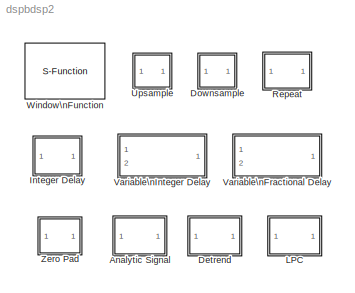
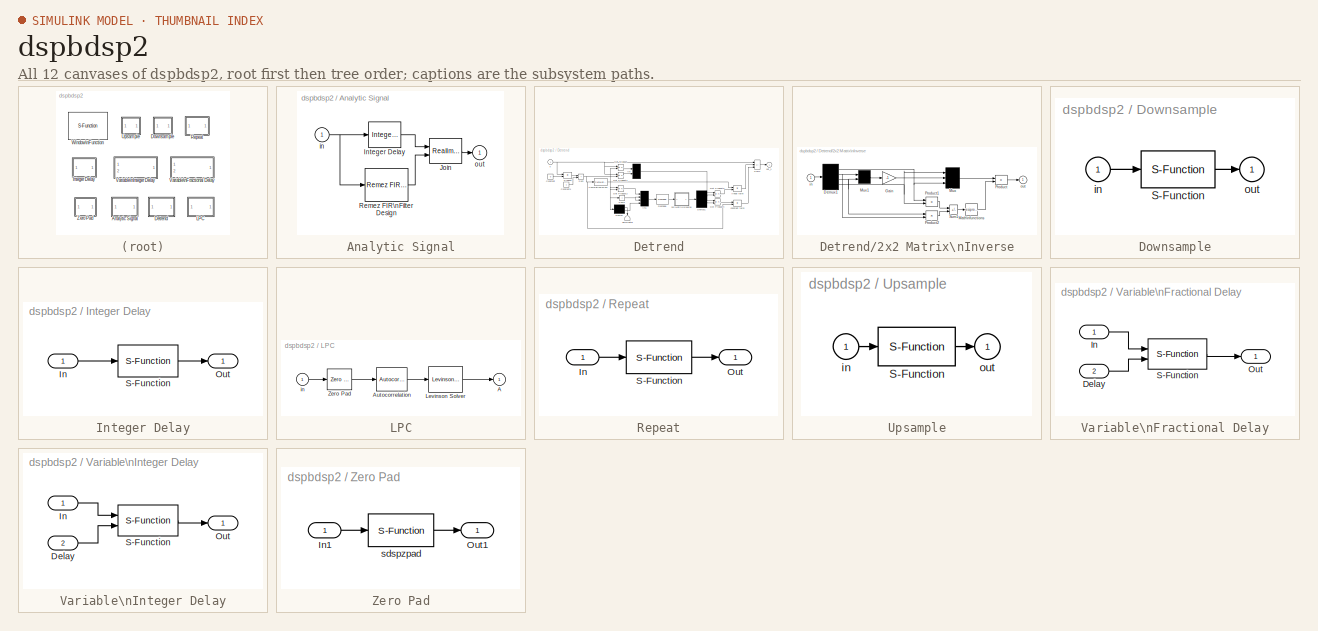
[diagram: thumbnail index - all 12 canvases of the model, root first then tree order]
MODEL dspbdsp2
KIND library
BLOCK [SubSystem] Analytic Signal
  MaskCallbackString = |dspblkanalytic|
  MaskDescription = Complex analytic signal of input.
  MaskDisplay = plot(x,y)
  MaskEnableString = on,on,off
  MaskHelp = web(dspbhelp);
  MaskIconFrame = on
  MaskIconOpaque = on
  MaskIconRotate = none
  MaskIconUnits = autoscale
  MaskInitialization = [x,y] = dspblkanalytic('icon');
  MaskPromptString = Filter order (must be even):|Frame-Based Inputs:|Number of Channels
  MaskSelfModifiable = on
  MaskStyleString = edit,checkbox,edit
  MaskTunableValueString = off,off,off
  MaskType = Analytic Signal
  MaskValueString = 100|off|1
  MaskVariables = N=@1;frame=&2;numChans=@3;
  MaskVisibilityString = on,on,on
  Ports = [1, 1, 0, 0, 0]
  ShowPortLabels = on
BLOCK [Reference] Analytic Signal/Integer Delay  REF=dspbdsp2/Integer Delay
  Ports = [1, 1, 0, 0, 0]
  SourceBlock = dspbdsp2/Integer Delay
  SourceType = Integer Delay
  delay = N/2
  df = on
  frame = off
  ic = 0
  numChans = 1
BLOCK [RealImagToComplex] Analytic Signal/Join
  ConstantPart = 0
  Input = RealAndImag
  Ports = [2, 1, 0, 0, 0]
BLOCK [Reference] Analytic Signal/Remez FIR\nFilter Design  REF=dspddes2/Remez FIR\nFilter Design
  A = [1 1]
  F = [0.05 .95]
  N = N
  Ports = [1, 1, 0, 0, 0]
  SourceBlock = dspddes2/Remez FIR\nFilter Design
  SourceType = Remez FIR Filter Design
  W = 1
  filttype = Hilbert Transform
  frame = off
  numCHANS = 1
BLOCK [Inport] Analytic Signal/in
  DataType = auto
  Interpolate = on
  Port = 1
  PortWidth = -1
  SampleTime = -1
  SignalType = auto
BLOCK [Outport] Analytic Signal/out
  InitialOutput = 0
  OutputWhenDisabled = held
  Port = 1
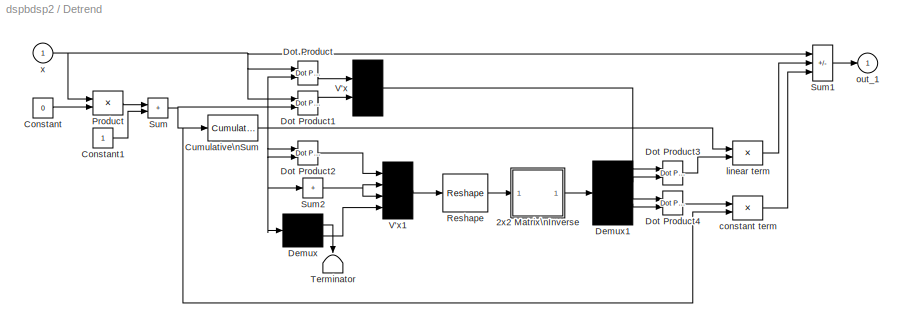
BLOCK [SubSystem] Detrend
  MaskDescription = Remove linear trend from vector input.
  MaskDisplay = plot(0,0,100,100,[12 20 24 32 38 44 49 54 67 69 71 78 81 89],[56 76 60 79 75 83 80 87 65 76 84 86 91 89],[],[],[],[],[],[],[12 20 24 32 38 44 49 54 67 69 71 78 81 89],[12 31 13 31 27 34 30 36 13 23 30 31 34 32],[4 96],[61 90],[47 47 42 47 52],[64 44 50 44 50],[4 96],[23 23])
  MaskHelp = web(dspbhelp);
  MaskIconFrame = on
  MaskIconOpaque = on
  MaskIconRotate = none
  MaskIconUnits = autoscale
  MaskType = Detrend
  Ports = [1, 1, 0, 0, 0]
  ShowPortLabels = on
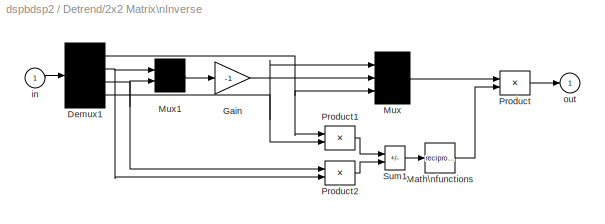
BLOCK [SubSystem] Detrend/2x2 Matrix\nInverse
  MaskDisplay = disp('Invert\\n2x2')
  MaskIconFrame = on
  MaskIconOpaque = on
  MaskIconRotate = none
  MaskIconUnits = autoscale
  MaskType = Invert 2x2 Matrix
  Ports = [1, 1, 0, 0, 0]
  ShowPortLabels = on
BLOCK [Demux] Detrend/2x2 Matrix\nInverse/Demux1
  Outputs = 4
  Ports = [1, 4, 0, 0, 0]
BLOCK [Gain] Detrend/2x2 Matrix\nInverse/Gain
  Gain = -1
  SaturateOnIntegerOverflow = on
BLOCK [Math] Detrend/2x2 Matrix\nInverse/Math\nfunctions
  Operator = reciprocal
  OutputSignalType = auto
  Ports = [1, 1, 0, 0, 0]
BLOCK [Mux] Detrend/2x2 Matrix\nInverse/Mux
  DisplayOption = none
  Inputs = 3
  Ports = [3, 1, 0, 0, 0]
BLOCK [Mux] Detrend/2x2 Matrix\nInverse/Mux1
  DisplayOption = none
  Inputs = 2
  Ports = [2, 1, 0, 0, 0]
BLOCK [Product] Detrend/2x2 Matrix\nInverse/Product
  Inputs = 2
  Ports = [2, 1, 0, 0, 0]
  SaturateOnIntegerOverflow = on
BLOCK [Product] Detrend/2x2 Matrix\nInverse/Product1
  Inputs = 2
  Ports = [2, 1, 0, 0, 0]
  SaturateOnIntegerOverflow = on
BLOCK [Product] Detrend/2x2 Matrix\nInverse/Product2
  Inputs = 2
  Ports = [2, 1, 0, 0, 0]
  SaturateOnIntegerOverflow = on
BLOCK [Sum] Detrend/2x2 Matrix\nInverse/Sum1
  IconShape = rectangular
  Inputs = +-
  Ports = [2, 1, 0, 0, 0]
  SaturateOnIntegerOverflow = on
BLOCK [Inport] Detrend/2x2 Matrix\nInverse/in
  DataType = auto
  Interpolate = on
  Port = 1
  PortWidth = -1
  SampleTime = -1
  SignalType = auto
BLOCK [Outport] Detrend/2x2 Matrix\nInverse/out
  InitialOutput = 0
  OutputWhenDisabled = held
  Port = 1
BLOCK [Constant] Detrend/Constant
  Value = 0
BLOCK [Constant] Detrend/Constant1
  Value = 1
BLOCK [Reference] Detrend/Cumulative\nSum  REF=dspvect2/Cumulative\nSum
  Ports = [1, 1, 0, 0, 0]
  SourceBlock = dspvect2/Cumulative\nSum
  SourceType = Cumulative Sum
BLOCK [Demux] Detrend/Demux
  Outputs = [-1 1]
  Ports = [1, 2, 0, 0, 0]
BLOCK [Demux] Detrend/Demux1
  Outputs = [2 2]
  Ports = [1, 2, 0, 0, 0]
BLOCK [Reference] Detrend/Dot Product  REF=simulink3/Math/Dot Product
  Ports = [2, 1, 0, 0, 0]
  SourceBlock = simulink3/Math/Dot Product
  SourceType = Dot Product
BLOCK [Reference] Detrend/Dot Product1  REF=simulink3/Math/Dot Product
  Ports = [2, 1, 0, 0, 0]
  SourceBlock = simulink3/Math/Dot Product
  SourceType = Dot Product
BLOCK [Reference] Detrend/Dot Product2  REF=simulink3/Math/Dot Product
  Ports = [2, 1, 0, 0, 0]
  SourceBlock = simulink3/Math/Dot Product
  SourceType = Dot Product
BLOCK [Reference] Detrend/Dot Product3  REF=simulink3/Math/Dot Product
  Ports = [2, 1, 0, 0, 0]
  SourceBlock = simulink3/Math/Dot Product
  SourceType = Dot Product
BLOCK [Reference] Detrend/Dot Product4  REF=simulink3/Math/Dot Product
  Ports = [2, 1, 0, 0, 0]
  SourceBlock = simulink3/Math/Dot Product
  SourceType = Dot Product
BLOCK [Product] Detrend/Product
  Inputs = 2
  Ports = [2, 1, 0, 0, 0]
  SaturateOnIntegerOverflow = on
BLOCK [Reference] Detrend/Reshape  REF=dspmtrx2/Reshape
  Asiz = [2 2]
  Ports = [1, 1, 0, 0, 0]
  SourceBlock = dspmtrx2/Reshape
  SourceType = Reshape
BLOCK [Sum] Detrend/Sum
  IconShape = rectangular
  Inputs = ++
  Ports = [2, 1, 0, 0, 0]
  SaturateOnIntegerOverflow = on
BLOCK [Sum] Detrend/Sum1
  IconShape = rectangular
  Inputs = +--
  Ports = [3, 1, 0, 0, 0]
  SaturateOnIntegerOverflow = on
BLOCK [Sum] Detrend/Sum2
  IconShape = rectangular
  Inputs = +
  Ports = [1, 1, 0, 0, 0]
  SaturateOnIntegerOverflow = on
BLOCK [Terminator] Detrend/Terminator
BLOCK [Mux] Detrend/V'x
  DisplayOption = none
  Inputs = 2
  Ports = [2, 1, 0, 0, 0]
BLOCK [Mux] Detrend/V'x1
  DisplayOption = none
  Inputs = 4
  Ports = [4, 1, 0, 0, 0]
BLOCK [Product] Detrend/constant term
  Inputs = 2
  Ports = [2, 1, 0, 0, 0]
  SaturateOnIntegerOverflow = on
BLOCK [Product] Detrend/linear term
  Inputs = 2
  Ports = [2, 1, 0, 0, 0]
  SaturateOnIntegerOverflow = on
BLOCK [Outport] Detrend/out_1
  InitialOutput = 0
  OutputWhenDisabled = held
  Port = 1
BLOCK [Inport] Detrend/x
  DataType = auto
  Interpolate = on
  Port = 1
  PortWidth = -1
  SampleTime = -1
  SignalType = auto
BLOCK [SubSystem] Downsample
  MaskCallbackString = ||||dspblkdsamp||
  MaskDescription = Downsample by an integer  factor.  Optional sample offset must be an integer in range (0, N-1).
  MaskDisplay = plot(x,y);\ntext(.6,.4,s);\n
  MaskEnableString = on,on,on,on,on,off,off
  MaskHelp = web(dspbhelp);
  MaskIconFrame = on
  MaskIconOpaque = on
  MaskIconRotate = none
  MaskIconUnits = normalized
  MaskInitialization = [s,x,y] = dspblkdsamp('icon',N, &1);\n
  MaskPromptString = Downsample factor, N:|Sample offset (0 to N-1):|Initial condition:|Enforce single-rate|Frame-based inputs|Number of channels:|Framing:
  MaskSelfModifiable = on
  MaskStyleString = edit,edit,edit,checkbox,checkbox,edit,popup(Maintain input frame size|Maintain input frame rate)
  MaskTunableValueString = off,off,off,on,off,off,off
  MaskType = Downsample
  MaskValueString = 2|0|0|off|off|1|Maintain input frame size
  MaskVariables = N=@1;phase=@2;ic=@3;sample_mode=@4;frame=@5;nchans=@6;mode=@7;
  MaskVisibilityString = on,on,on,on,on,on,on
  Ports = [1, 1, 0, 0, 0]
  ShowPortLabels = off
BLOCK [S-Function] Downsample/S-Function
  FunctionName = sdspdsamp
  Parameters = N,phase,ic,sample_mode,frame,nchans,mode
  PortCounts = []
  Ports = [1, 1, 0, 0, 0]
  SFunctionModules = ''
BLOCK [Inport] Downsample/in
  DataType = auto
  Interpolate = on
  Port = 1
  PortWidth = -1
  SampleTime = -1
  SignalType = auto
BLOCK [Outport] Downsample/out
  InitialOutput = 0
  OutputWhenDisabled = held
  Port = 1
BLOCK [SubSystem] Integer Delay
  MaskCallbackString = ||dspblkdly||
  MaskDescription = Delay discrete-time input by a fixed integer number of sample periods.\n\nIn frame-based mode, feedback loops can be made computable by deselecting \"Direct Feedthrough\".  This is valid only if the minimum delay value is at least as large as the frame size.
  MaskDisplay = text(0.42-dx, 0.4, 'z'); text(0.5-dx, 0.6, str);
  MaskEnableString = on,on,on,off,off
  MaskHelp = web(dspbhelp);
  MaskIconFrame = on
  MaskIconOpaque = on
  MaskIconRotate = none
  MaskIconUnits = normalized
  MaskInitialization = str = ['-' &1];\ndx = 0.01*length(str);\nif strcmp(frame,'off'), numChans=-1; end\ndelay=double(delay);\n
  MaskPromptString = Delay in samples:|Initial Conditions:|Frame-Based Inputs|Direct Feedthrough (deselect only if delay >= frame size)|Number of Channels:
  MaskStyleString = edit,edit,checkbox,checkbox,edit
  MaskTunableValueString = off,off,off,off,off
  MaskType = Integer Delay
  MaskValueString = 1|0|off|on|1
  MaskVariables = delay=@1;ic=@2;frame=&3;df=@4;numChans=@5;
  MaskVisibilityString = on,on,on,on,on
  Ports = [1, 1, 0, 0, 0]
  ShowPortLabels = on
BLOCK [Inport] Integer Delay/In
  DataType = auto
  Interpolate = on
  Port = 1
  PortWidth = -1
  SampleTime = -1
  SignalType = auto
BLOCK [Outport] Integer Delay/Out
  InitialOutput = 0
  OutputWhenDisabled = held
  Port = 1
BLOCK [S-Function] Integer Delay/S-Function
  FunctionName = sdspdly
  Parameters = delay,ic,numChans,df
  PortCounts = []
  Ports = [1, 1, 0, 0, 0]
  SFunctionModules = ''
BLOCK [SubSystem] LPC
  MaskDescription = Output the coefficients of an Nth order forward linear predictor such that the sum of the squares of the errors is minimized.
  MaskDisplay = disp('LPC')
  MaskEnableString = on
  MaskHelp = web(dspbhelp);
  MaskIconFrame = on
  MaskIconOpaque = on
  MaskIconRotate = none
  MaskIconUnits = autoscale
  MaskInitialization = if ord==-1,\n   pad = -1; acf=-1;\nelse\n   pad = ord+1; acf=ord;\nend\n
  MaskPromptString = Prediction order (-1 for length(u)-1):
  MaskStyleString = edit
  MaskTunableValueString = off
  MaskType = LPC
  MaskValueString = -1
  MaskVariables = ord=@1;
  MaskVisibilityString = on
  Ports = [1, 1, 0, 0, 0]
  ShowPortLabels = on
BLOCK [Outport] LPC/A
  InitialOutput = 0
  OutputWhenDisabled = held
  Port = 1
BLOCK [Reference] LPC/Autocorrelation  REF=dspvect2/Autocorrelation
  Ports = [1, 1, 0, 0, 0]
  SourceBlock = dspvect2/Autocorrelation
  SourceType = Autocorrelation
  bias = Biased
  maxlag = acf
BLOCK [Reference] LPC/Levinson Solver  REF=dsplinalg/Levinson Solver
  Ports = [1, 1, 0, 0, 0]
  SourceBlock = dsplinalg/Levinson Solver
  SourceType = Levinson Solver
  fcn = A
  otype = on
BLOCK [Reference] LPC/Zero Pad  REF=dspbdsp2/Zero Pad
  Ports = [1, 1, 0, 0, 0]
  SourceBlock = dspbdsp2/Zero Pad
  SourceType = Zero Pad
  nchans = 1
  pad = pad
  trunc = off
BLOCK [Inport] LPC/in
  DataType = auto
  Interpolate = on
  Port = 1
  PortWidth = -1
  SampleTime = -1
  SignalType = auto
BLOCK [SubSystem] Repeat
  MaskCallbackString = ||dspblkrepeat||
  MaskDescription = Repeat input samples N times.
  MaskDisplay = disp(s);
  MaskEnableString = on,on,on,off,off
  MaskHelp = web(dspbhelp);
  MaskIconFrame = on
  MaskIconOpaque = on
  MaskIconRotate = none
  MaskIconUnits = autoscale
  MaskInitialization = s = dspblkrepeat('icon',N, &1);\n\n
  MaskPromptString = Repetition count:|Initial conditions:|Frame-based inputs|Number of channels:|Framing:
  MaskSelfModifiable = on
  MaskStyleString = edit,edit,checkbox,edit,popup(Maintain input frame size|Maintain input frame rate)
  MaskTunableValueString = off,off,off,off,off
  MaskType = Repeat
  MaskValueString = 5|0|off|1|Maintain input frame size
  MaskVariables = N=@1;ic=@2;frame=@3;nchans=@4;mode=@5;
  MaskVisibilityString = on,on,on,on,on
  Ports = [1, 1, 0, 0, 0]
  ShowPortLabels = on
BLOCK [Inport] Repeat/In
  DataType = auto
  Interpolate = on
  Port = 1
  PortWidth = -1
  SampleTime = -1
  SignalType = auto
BLOCK [Outport] Repeat/Out
  InitialOutput = 0
  OutputWhenDisabled = held
  Port = 1
BLOCK [S-Function] Repeat/S-Function
  FunctionName = sdsprepeat
  Parameters = N,ic,frame,nchans,mode
  PortCounts = []
  Ports = [1, 1, 0, 0, 0]
  SFunctionModules = ''
BLOCK [SubSystem] Upsample
  MaskCallbackString = |||dspblkupsamp||
  MaskDescription = Upsample by inserting N-1 zeros between input samples.  Optional sample offset must be an integer in range (0, N-1).
  MaskDisplay = plot(x,y)\ntext(.6,.4,s);\n
  MaskEnableString = on,on,on,on,off,off
  MaskHelp = web(dspbhelp);
  MaskIconFrame = on
  MaskIconOpaque = on
  MaskIconRotate = none
  MaskIconUnits = autoscale
  MaskInitialization = [s,x,y] = dspblkupsamp('icon',N, &1);\n
  MaskPromptString = Upsample factor, N:|Sample offset (0 to N-1):|Initial condition:|Frame-based inputs|Number of channels:|Framing:
  MaskSelfModifiable = on
  MaskStyleString = edit,edit,edit,checkbox,edit,popup(Maintain input frame size|Maintain input frame rate)
  MaskTunableValueString = off,off,off,off,off,off
  MaskType = Upsample
  MaskValueString = 3|0|0|off|1|Maintain input frame size
  MaskVariables = N=@1;phase=@2;ic=@3;frame=@4;nchans=@5;mode=@6;
  MaskVisibilityString = on,on,on,on,on,on
  Ports = [1, 1, 0, 0, 0]
  ShowPortLabels = off
BLOCK [S-Function] Upsample/S-Function
  FunctionName = sdspupsamp
  Parameters = N,phase,ic,frame,nchans,mode
  PortCounts = []
  Ports = [1, 1, 0, 0, 0]
  SFunctionModules = ''
BLOCK [Inport] Upsample/in
  DataType = auto
  Interpolate = on
  Port = 1
  PortWidth = -1
  SampleTime = -1
  SignalType = auto
BLOCK [Outport] Upsample/out
  InitialOutput = 0
  OutputWhenDisabled = held
  Port = 1
BLOCK [SubSystem] Variable\nFractional Delay
  MaskCallbackString = dspblkvfdly||||||dspblkvfdly|
  MaskDescription = Delay discrete-time input by a time-varying fractional number of sample periods, as specified by the \"delay\" input.  Delay must be a real vector signal with one delay value per frame element.  The FIR filter is designed using \"intfilt\" from the Signal Processing Toolbox.
  MaskDisplay = text(0.5,0.4,'z','horiz','right')\ntext(0.5,0.6,'-f','horiz','left')
  MaskEnableString = on,on,on,on,on,on,on,off
  MaskHelp = web(dspbhelp);
  MaskIconFrame = on
  MaskIconOpaque = off
  MaskIconRotate = none
  MaskIconUnits = normalized
  MaskInitialization = [b,str] = dspblkvfdly(mode,R,L,alpha);\nif strcmp(frame,'off'), numChans=-1; end\n
  MaskPromptString = Mode:|Maximum delay in samples:|Interpolation filter half-length:|Interpolation points per input sample:|Normalized input bandwidth (0 to 1):|Initial Conditions:|Frame-Based Inputs|Number of Channels:
  MaskStyleString = popup(Linear Interpolation|FIR Interpolation),edit,edit,edit,edit,edit,checkbox,edit
  MaskTunableValueString = off,off,off,off,off,off,off,off
  MaskType = Variable Fractional Delay
  MaskValueString = Linear Interpolation|100|4|10|0.5|0|off|1
  MaskVariables = mode=@1;dmax=@2;L=@3;R=@4;alpha=@5;ic=@6;frame=&7;numChans=@8;
  MaskVisibilityString = on,on,off,off,off,on,on,on
  Ports = [2, 1, 0, 0, 0]
  ShowPortLabels = on
BLOCK [Inport] Variable\nFractional Delay/Delay
  DataType = auto
  Interpolate = on
  Port = 2
  PortWidth = -1
  SampleTime = -1
  SignalType = auto
BLOCK [Inport] Variable\nFractional Delay/In
  DataType = auto
  Interpolate = on
  Port = 1
  PortWidth = -1
  SampleTime = -1
  SignalType = auto
BLOCK [Outport] Variable\nFractional Delay/Out
  InitialOutput = 0
  OutputWhenDisabled = held
  Port = 1
BLOCK [S-Function] Variable\nFractional Delay/S-Function
  FunctionName = sdspvfdly
  Parameters = dmax,b,ic,numChans
  PortCounts = []
  Ports = [2, 1, 0, 0, 0]
  SFunctionModules = ''
BLOCK [SubSystem] Variable\nInteger Delay
  MaskCallbackString = ||dspblkvidly|
  MaskDescription = Delay discrete-time input by a time-varying integer number of sample periods specified by the \"delay\" input.  Delay is a real vector signal with one delay value per sample period.  For frame-based operation, the delay input can have one delay per sample period or one delay per frame.
  MaskDisplay = text(0.5,0.4,'z','horiz','right')\ntext(0.5,0.6,'-i','horiz','left')
  MaskEnableString = on,on,on,off
  MaskHelp = web(dspbhelp);
  MaskIconFrame = on
  MaskIconOpaque = off
  MaskIconRotate = none
  MaskIconUnits = normalized
  MaskInitialization = str = dspblkvidly(1);\nif strcmp(frame,'off'), numChans=-1; end
  MaskPromptString = Maximum delay in samples:|Initial Conditions:|Frame-Based Inputs|Number of Channels:
  MaskStyleString = edit,edit,checkbox,edit
  MaskTunableValueString = off,off,off,off
  MaskType = Variable Integer Delay
  MaskValueString = 100|0|off|1
  MaskVariables = dmax=@1;ic=@2;frame=&3;numChans=@4;
  MaskVisibilityString = on,on,on,on
  Ports = [2, 1, 0, 0, 0]
  ShowPortLabels = on
BLOCK [Inport] Variable\nInteger Delay/Delay
  DataType = auto
  Interpolate = on
  Port = 2
  PortWidth = -1
  SampleTime = -1
  SignalType = auto
BLOCK [Inport] Variable\nInteger Delay/In
  DataType = auto
  Interpolate = on
  Port = 1
  PortWidth = -1
  SampleTime = -1
  SignalType = auto
BLOCK [Outport] Variable\nInteger Delay/Out
  InitialOutput = 0
  OutputWhenDisabled = held
  Port = 1
BLOCK [S-Function] Variable\nInteger Delay/S-Function
  FunctionName = sdspvidly
  Parameters = dmax,ic,numChans
  PortCounts = []
  Ports = [2, 1, 0, 0, 0]
  SFunctionModules = ''
BLOCK [S-Function] Window\nFunction
  FunctionName = sdspwindow
  MaskCallbackString = dspblkwinfcn|dspblkwinfcn|||||
  MaskDescription = Generate window function and apply to input vector.
  MaskDisplay = plot(x,y); text(.2,.85,str);\nport_label(ports(1).type,ports(1).port,ports(1).txt);\nport_label(ports(2).type,ports(2).port,ports(2).txt);\nport_label(ports(3).type,ports(3).port,ports(3).txt);\n
  MaskEnableString = on,on,off,off,off,on,on
  MaskHelp = web(dspbhelp);\n
  MaskIconFrame = on
  MaskIconOpaque = on
  MaskIconRotate = none
  MaskIconUnits = normalized
  MaskInitialization = [x,y,str,ports] = dspblkwinfcn('icon',Rs,beta);\n
  MaskPromptString = Operation:|Window Type:|Window length:|Stopband attenuation in dB:|Beta:|Sampling:|Number of channels:
  MaskSelfModifiable = on
  MaskStyleString = popup(Apply window to input|Generate window|Generate and apply window),popup(Bartlett|Blackman|Boxcar|Chebyshev|Hamming|Hann|Hanning|Kaiser|Triang),edit,edit,edit,popup(Symmetric|Periodic),edit
  MaskTunableValueString = off,on,off,on,on,on,off
  MaskType = Window Function
  MaskValueString = Apply window to input|Hamming|64|50|10|Symmetric|1
  MaskVariables = winmode=@1;wintype=@2;N=@3;Rs=@4;beta=@5;winsamp=@6;NChans=@7;
  MaskVisibilityString = on,on,on,on,on,on,on
  Parameters = winmode,wintype,N,Rs,beta,winsamp,NChans
  PortCounts = []
  Ports = [1, 1, 0, 0, 0]
  SFunctionModules = ''
BLOCK [SubSystem] Zero Pad
  MaskCallbackString = ||
  MaskDescription = Pad input frame with zeros.
  MaskDisplay = plot(0,0,100,100,[51 44 44 51],[92 92 8 8],[73 80 80 73],[92 92 8 8],[56 68],[80 80],[56 68],[72 72],[56 68],[64 64],[56 68],[56 56],[56 68],[48 48],[56 68],[40 40],[64 60 56 55 56 60 64 68 69 68 64],[32 32 28 22 16 12 12 16 22 28 32],[24 24 40 36 40 36],[52 24 24 28 24 20])
  MaskEnableString = on,on,on
  MaskHelp = web(dspbhelp);
  MaskIconFrame = on
  MaskIconOpaque = on
  MaskIconRotate = none
  MaskIconUnits = autoscale
  MaskPromptString = Output frame size (-1 to inherit input size):|Allow truncation of input|Number of channels:
  MaskStyleString = edit,checkbox,edit
  MaskTunableValueString = off,off,off
  MaskType = Zero Pad
  MaskValueString = -1|on|1
  MaskVariables = pad=@1;trunc=@2;nchans=@3;
  MaskVisibilityString = on,on,on
  Ports = [1, 1, 0, 0, 0]
  ShowPortLabels = on
BLOCK [Inport] Zero Pad/In1
  DataType = auto
  Interpolate = on
  Port = 1
  PortWidth = -1
  SampleTime = -1
  SignalType = auto
BLOCK [Outport] Zero Pad/Out1
  InitialOutput = []
  OutputWhenDisabled = held
  Port = 1
BLOCK [S-Function] Zero Pad/sdspzpad
  FunctionName = sdspzpad
  Parameters = pad,trunc,nchans
  PortCounts = []
  Ports = [1, 1, 0, 0, 0]
  SFunctionModules = ''
LINE Analytic Signal/Integer Delay:1 -> Analytic Signal/Join:1
LINE Analytic Signal/Join:1 -> Analytic Signal/out:1
LINE Analytic Signal/Remez FIR\nFilter Design:1 -> Analytic Signal/Join:2
NET Analytic Signal/in:1 -> Analytic Signal/Integer Delay:1, Analytic Signal/Remez FIR\nFilter Design:1
NET Detrend/2x2 Matrix\nInverse/Demux1:1 -> Detrend/2x2 Matrix\nInverse/Mux:3, Detrend/2x2 Matrix\nInverse/Product1:1
NET Detrend/2x2 Matrix\nInverse/Demux1:2 -> Detrend/2x2 Matrix\nInverse/Mux1:1, Detrend/2x2 Matrix\nInverse/Product2:2
NET Detrend/2x2 Matrix\nInverse/Demux1:3 -> Detrend/2x2 Matrix\nInverse/Mux1:2, Detrend/2x2 Matrix\nInverse/Product2:1
NET Detrend/2x2 Matrix\nInverse/Demux1:4 -> Detrend/2x2 Matrix\nInverse/Mux:1, Detrend/2x2 Matrix\nInverse/Product1:2
LINE Detrend/2x2 Matrix\nInverse/Gain:1 -> Detrend/2x2 Matrix\nInverse/Mux:2
LINE Detrend/2x2 Matrix\nInverse/Math\nfunctions:1 -> Detrend/2x2 Matrix\nInverse/Product:2
LINE Detrend/2x2 Matrix\nInverse/Mux1:1 -> Detrend/2x2 Matrix\nInverse/Gain:1
LINE Detrend/2x2 Matrix\nInverse/Mux:1 -> Detrend/2x2 Matrix\nInverse/Product:1
LINE Detrend/2x2 Matrix\nInverse/Product1:1 -> Detrend/2x2 Matrix\nInverse/Sum1:1
LINE Detrend/2x2 Matrix\nInverse/Product2:1 -> Detrend/2x2 Matrix\nInverse/Sum1:2
LINE Detrend/2x2 Matrix\nInverse/Product:1 -> Detrend/2x2 Matrix\nInverse/out:1
LINE Detrend/2x2 Matrix\nInverse/Sum1:1 -> Detrend/2x2 Matrix\nInverse/Math\nfunctions:1
LINE Detrend/2x2 Matrix\nInverse/in:1 -> Detrend/2x2 Matrix\nInverse/Demux1:1
LINE Detrend/2x2 Matrix\nInverse:1 -> Detrend/Demux1:1
LINE Detrend/Constant1:1 -> Detrend/Sum:2
LINE Detrend/Constant:1 -> Detrend/Product:2
NET Detrend/Cumulative\nSum:1 -> Detrend/Demux:1, Detrend/Dot Product2:1, Detrend/Dot Product2:2, Detrend/Dot Product:2, Detrend/Sum2:1, Detrend/linear term:1
LINE Detrend/Demux1:1 -> Detrend/Dot Product3:2
LINE Detrend/Demux1:2 -> Detrend/Dot Product4:2
LINE Detrend/Demux:1 -> Detrend/Terminator:1
LINE Detrend/Demux:2 -> Detrend/V'x1:4
LINE Detrend/Dot Product1:1 -> Detrend/V'x:2
LINE Detrend/Dot Product2:1 -> Detrend/V'x1:1
LINE Detrend/Dot Product3:1 -> Detrend/linear term:2
LINE Detrend/Dot Product4:1 -> Detrend/constant term:1
LINE Detrend/Dot Product:1 -> Detrend/V'x:1
LINE Detrend/Product:1 -> Detrend/Sum:1
LINE Detrend/Reshape:1 -> Detrend/2x2 Matrix\nInverse:1
LINE Detrend/Sum1:1 -> Detrend/out_1:1
NET Detrend/Sum2:1 -> Detrend/V'x1:2, Detrend/V'x1:3
NET Detrend/Sum:1 -> Detrend/Cumulative\nSum:1, Detrend/Dot Product1:2, Detrend/constant term:2
LINE Detrend/V'x1:1 -> Detrend/Reshape:1
NET Detrend/V'x:1 -> Detrend/Dot Product3:1, Detrend/Dot Product4:1
LINE Detrend/constant term:1 -> Detrend/Sum1:3
LINE Detrend/linear term:1 -> Detrend/Sum1:2
NET Detrend/x:1 -> Detrend/Dot Product1:1, Detrend/Dot Product:1, Detrend/Product:1, Detrend/Sum1:1
LINE Downsample/S-Function:1 -> Downsample/out:1
LINE Downsample/in:1 -> Downsample/S-Function:1
LINE Integer Delay/In:1 -> Integer Delay/S-Function:1
LINE Integer Delay/S-Function:1 -> Integer Delay/Out:1
LINE LPC/Autocorrelation:1 -> LPC/Levinson Solver:1
LINE LPC/Levinson Solver:1 -> LPC/A:1
LINE LPC/Zero Pad:1 -> LPC/Autocorrelation:1
LINE LPC/in:1 -> LPC/Zero Pad:1
LINE Repeat/In:1 -> Repeat/S-Function:1
LINE Repeat/S-Function:1 -> Repeat/Out:1
LINE Upsample/S-Function:1 -> Upsample/out:1
LINE Upsample/in:1 -> Upsample/S-Function:1
LINE Variable\nFractional Delay/Delay:1 -> Variable\nFractional Delay/S-Function:2
LINE Variable\nFractional Delay/In:1 -> Variable\nFractional Delay/S-Function:1
LINE Variable\nFractional Delay/S-Function:1 -> Variable\nFractional Delay/Out:1
LINE Variable\nInteger Delay/Delay:1 -> Variable\nInteger Delay/S-Function:2
LINE Variable\nInteger Delay/In:1 -> Variable\nInteger Delay/S-Function:1
LINE Variable\nInteger Delay/S-Function:1 -> Variable\nInteger Delay/Out:1
LINE Zero Pad/In1:1 -> Zero Pad/sdspzpad:1
LINE Zero Pad/sdspzpad:1 -> Zero Pad/Out1:1
note: NET lines group one-source signal fan-out (src -> all destinations, sorted); 1:1 wires keep LINE
